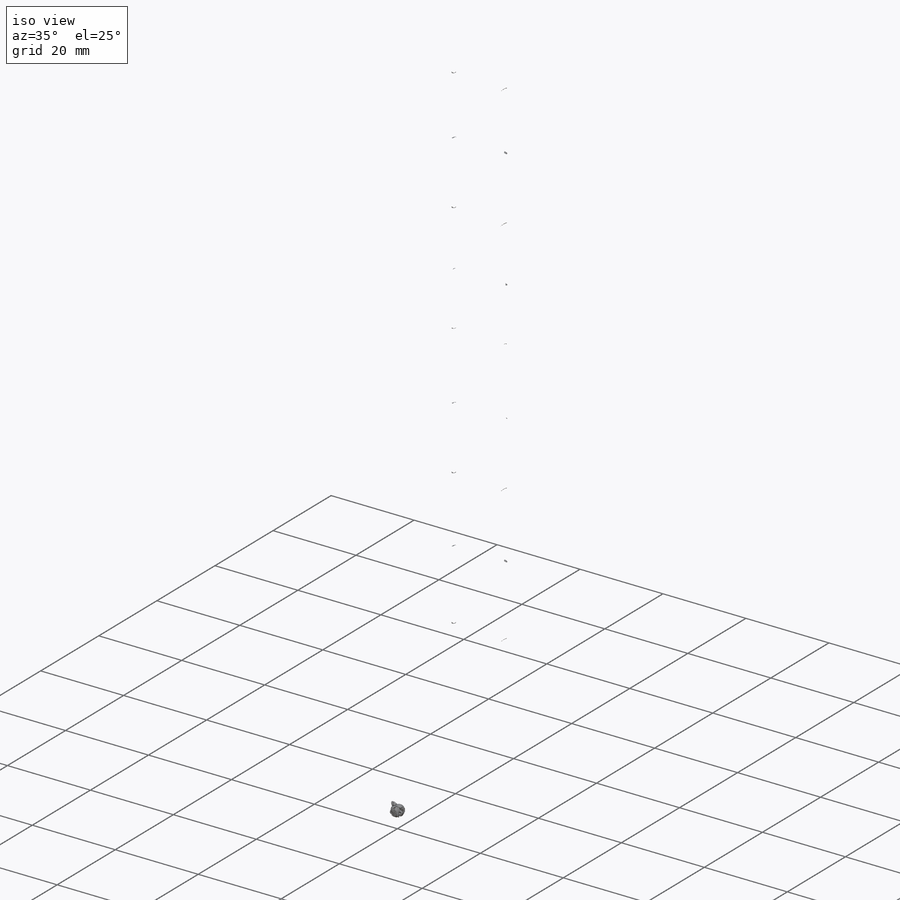
[diagram: iso view]
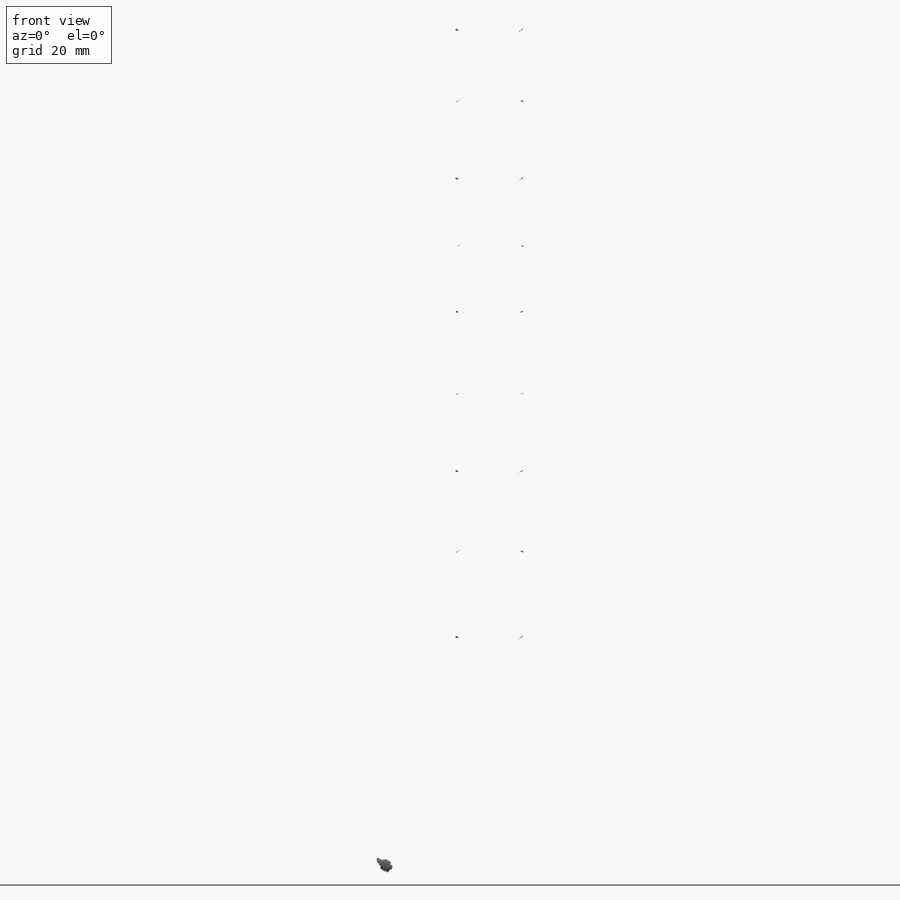
[diagram: front view]
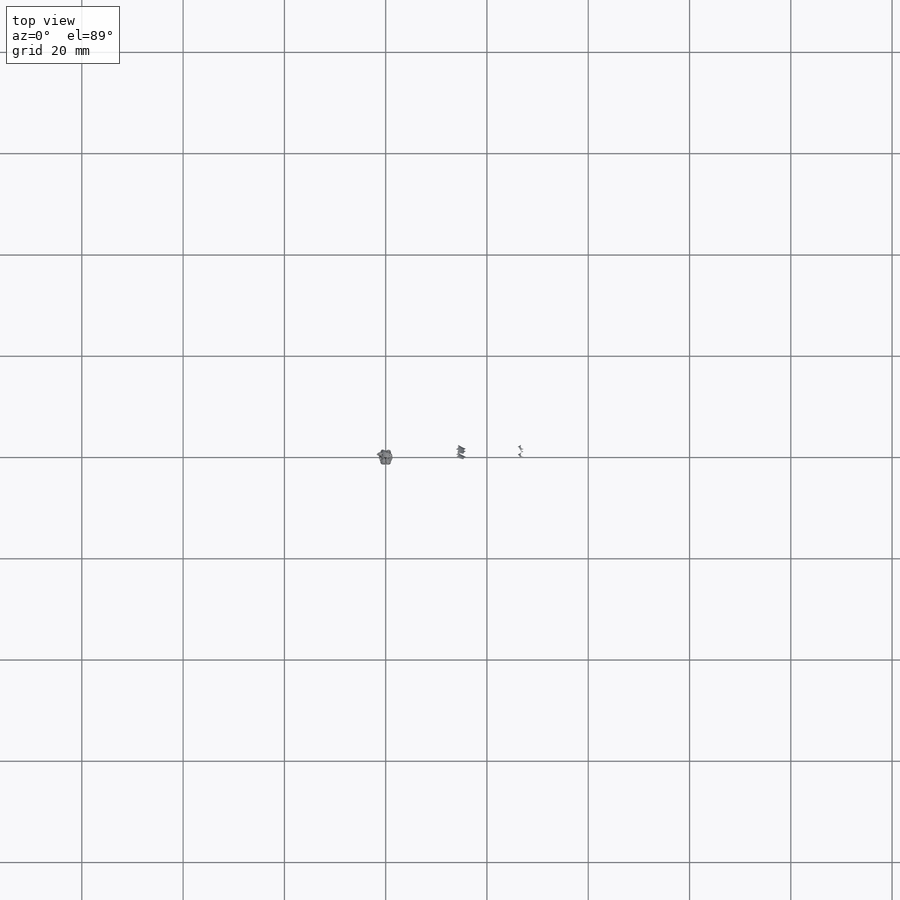
[diagram: top view]
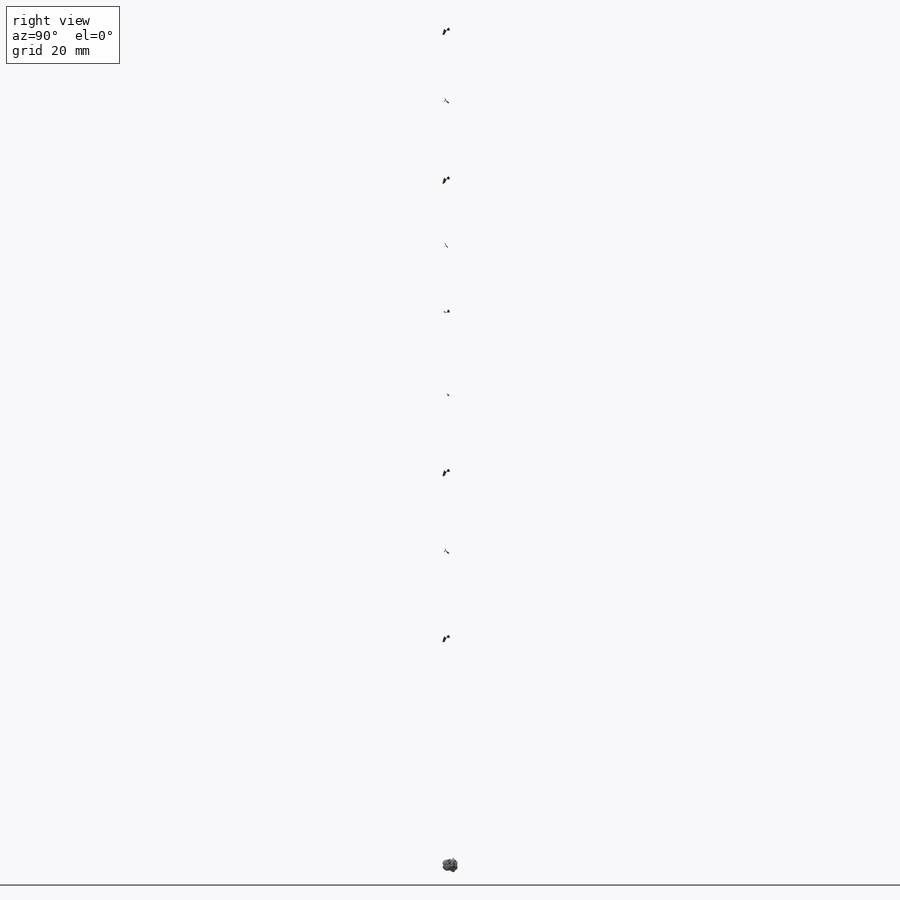
[diagram: right view]
SOLIDWORKS PART (.sldprt)
format: sldprt  version: not decoded by parser v0  size: 8,215,040 bytes
history: native  units: mm
features: sketch x25, fillet x21, cut_extrude x15, thread x6, extrude x3, plane x3, hole x2, material x1, pattern_circular x1, chamfer x1 (+13 scaffold rows collapsed)
feature tree (91):
  scaffold x13  (default folders/planes/origin — collapsed)
  material  "ABS"
  sketch  "Sketch1"  dims[c1.D1=10.0mm c1.D2=41.0mm c1.D8=~734.657485mm c1.D10=30.0mm c1.D11=5.0mm c1.D12=2.0mm c1.D13=5.0mm c1.D14=6.5mm c1.D3=~27.601514mm c1.D4=~17.792712mm c2.D3=26.0mm c2.D4=18.0mm c2.D5=3.0mm c2.D6=14.0mm c2.D7=165.0mm c2.D8=9.0mm c2.D9=24.0mm c2.D13=13.0mm]
  extrude  "Boss-Extrude1"  Depth=11mm
  sketch  "Sketch2"  dims[c1.D1=~9.701455mm c1.D4=5.0mm c1.D5=~9.93584mm c2.D1=15.0mm c2.D2=3.0mm c2.D3=11.0mm c2.D5=~5.456064mm c3.D3=11.0mm]
  cut_extrude  "Cut-Extrude1"  Depth=6mm
  pattern_circular  "CirPattern1"  Count=4 Angle=90deg
  sketch  "Sketch3"
  cut_extrude  "Cut-Extrude2"  [1 undecoded]
  sketch  "Sketch4"  dims[c1.D1=~16.105479mm c1.D2=16.0mm c1.D3=19.0mm c1.D4=~12.374369mm c1.D5=~28.377385mm c2.D5=45.0deg]
  cut_extrude  "Hole Electric Motor"  [1 undecoded]
  sketch  "Sketch5"  dims[c1.D1=~28.060915mm c1.D2=~45.629151mm c2.D1=52.0mm]
  cut_extrude  "Cut-Extrude4"  Depth=2mm
  chamfer  "Chamfer1"  Distance=2mm
  sketch  "Sketch7"  dims[D2=32.0mm D1=0.0mm]
  cut_extrude  "Cut-Extrude5"  Depth=1mm
  sketch  "Sketch16"  dims[D1=6.0mm D2=21.0mm D3=8.5mm D4=52.0mm D5=37.0mm D6=13.0mm D7=10.0mm]
  extrude  "Boss-Extrude2"  [1 undecoded]
  sketch  "Sketch8"  dims[D1=10.0mm D2=136.5mm]
  cut_extrude  "Cut-Extrude6"  [1 undecoded]
  plane  "Plane1"  Offset=11mm
  sketch  "Sketch9"  dims[c1.D1=20.5mm c1.D2=2.0mm c1.D8=~123.170172mm c1.D10=~588.277472mm c1.D11=~588.277472mm c1.D12=2.0mm c1.D13=~588.277472mm c1.D5=2.0mm c2.D13=~41.020292mm c2.D15=2.0mm c2.D18=2.0mm c2.D14=2.0mm c2.D22=~4.412751mm c2.D23=2.0mm c2.D25=~3.159334mm c2.D16=2.0mm c3.D25=2.0mm c3.D28=2.0mm c3.D30=~32.897522mm c3.D31=2.0mm c3.D33=1.0mm c3.D34=~8.190481mm c3.D29=~27.335833mm c3.D1=2.0mm c3.D3=5.5mm c3.D4=12.5mm c3.D5=2.5mm c3.D6=~0.804271mm c3.D8=1.5mm c3.D9=5.0mm c3.D10=2.5mm c3.D11=2.5mm c3.D13=2.5mm c4.D3=5.5mm c4.D10=1.5mm c4.D13=1.5mm c4.D15=~10.685319mm c4.D16=19.0mm c4.D17=1.5mm c4.D18=~0.618898mm c4.D20=1.5mm c4.D21=5.0mm c4.D22=1.5mm c4.D24=2.0mm c4.D25=5.0mm c4.D9=~4.20433mm c5.D25=~4.20433mm c5.D9=5.0mm c6.D25=~10.769417mm c6.D16=16.0mm c6.D26=1.5mm c6.D27=16.0mm c6.D28=~0.249994mm c6.D29=1.5mm c6.D30=1.5mm c6.D32=9.0mm c7.D27=19.5mm c7.D29=1.5mm c7.D30=1.5mm c7.D9=6.0mm c7.D16=10.5mm c8.D27=2.0mm c8.D32=19.0mm c8.D6=1.25mm c8.D7=1.25mm c8.D14=2.5mm c8.D19=2.5mm]
  cut_extrude  "Cut-Extrude7"  Depth=10mm
  plane  "Plane2"  Offset=38mm
  sketch  "Sketch10"  dims[D1=2.0mm D2=13.0mm]
  cut_extrude  "Cut-Extrude8"  Depth=134mm
  sketch  "Sketch11"  dims[D1=~6.33882mm]
  cut_extrude  "Cut-Extrude9"  [1 undecoded]
  hole  "M2.5 Tapped Hole1"  Diameter=2.05mm Depth=6.35mm
  sketch  "Sketch13"  dims[D1=16.0mm D2=23.0mm D3=20.0mm D4=5.0mm D5=32.0mm]
  sketch  "Sketch12"  dims[hole-wizard template sketch: 47 standard entries collapsed; hole parameters kept: c15.Tap Drill Depth=6.35mm c15.D3=~14.816244mm c15.Drill Angle=118.0deg]
  thread  "Hole Thread3"  Diameter=5mm  [1 undecoded]
  thread  "Hole Thread4"  Diameter=5mm  [1 undecoded]
  thread  "Hole Thread5"  Diameter=5mm  [1 undecoded]
  thread  "Hole Thread6"  Diameter=5mm  [1 undecoded]
  sketch  "Sketch14"  dims[D1=~21.633501mm D2=12.0mm D3=21.0mm D4=8.5mm D5=~0.778978mm]
  sketch  "Sketch15"  dims[D1=17.0mm]
  sketch  "Sketch17"  dims[D1=0.0mm]
  cut_extrude  "Cut-Extrude10"  [1 undecoded]
  sketch  "Sketch18"  dims[D1=0.0mm]
  cut_extrude  "Cut-Extrude11"  [1 undecoded]
  sketch  "Sketch19"  dims[D1=0.0mm D2=0.0mm]
  cut_extrude  "Cut-Extrude12"  [1 undecoded]
  sketch  "Sketch20"  dims[c1.D1=~7.570941mm c1.D2=6.0mm c2.D1=14.0mm c2.D2=~0.289566mm c2.D3=18.0mm]
  cut_extrude  "Cut-Extrude13"  [1 undecoded]
  sketch  "Sketch21"  dims[D1=6.0mm D2=5.0mm D3=8.0mm]
  cut_extrude  "Cut-Extrude19"  [1 undecoded]
  sketch  "Sketch24"  dims[D1=7.0mm D2=~3.839168mm]
  cut_extrude  "Cut-Extrude20"  [1 undecoded]
  hole  "M2.5 Tapped Hole2"  Diameter=2.05mm Depth=6.35mm
  sketch  "Sketch23"  dims[D1=21.0mm D2=20.0mm]
  sketch  "Sketch22"  dims[hole-wizard template sketch: 47 standard entries collapsed; hole parameters kept: c15.Tap Drill Depth=6.35mm c15.D3=~14.816244mm c15.Drill Angle=118.0deg]
  thread  "Hole Thread7"  Diameter=5mm  [1 undecoded]
  thread  "Hole Thread8"  Diameter=5mm  [1 undecoded]
  sketch  "Sketch25"
  plane  "Plane3"
  sketch  "Sketch26"  dims[D2=2.0mm D1=5.0mm D3=16.0mm D4=39.0mm D5=4.0mm D6=5.0mm D7=53.0mm D8=15.0mm D9=5.0mm D10=22.0mm]
  extrude  "Boss-Extrude3"  Depth=6mm
  fillet  "Fillet1"  Radius=6mm
  fillet  "Fillet2"  Radius=4mm
  fillet  "Fillet3"  Radius=2mm
  fillet  "Fillet4"  Radius=1mm
  fillet  "Fillet5"  Radius=0.5mm
  fillet  "Fillet6"  Radius=0.5mm
  fillet  "Fillet7"  Radius=0.5mm
  fillet  "Fillet9"  Radius=0.5mm
  fillet  "Fillet10"  Radius=0.5mm
  fillet  "Fillet11"  Radius=0.5mm
  fillet  "Fillet12"  Radius=0.5mm
  fillet  "Fillet13"  Radius=0.5mm
  fillet  "Fillet14"  Radius=0.5mm
  fillet  "Fillet15"  Radius=0.5mm
  fillet  "Fillet16"  Radius=0.5mm
  fillet  "Fillet17"  Radius=0.5mm
  fillet  "Fillet8"  Radius=0.5mm
  fillet  "Fillet18"  Radius=0.5mm
  fillet  "Fillet19"  Radius=0.5mm
  fillet  "Fillet20"  Radius=0.5mm
  fillet  "Fillet21"  Radius=0.5mm
decode coverage: 61 of 74 modeling features carry decoded parameters
note: ~ marks probable driven/reference dimensions
note: 17 parameter values undecoded
summary: no parameter record found for 11 features
note: suppression state not decoded; provenance and decode notes live in map.json
